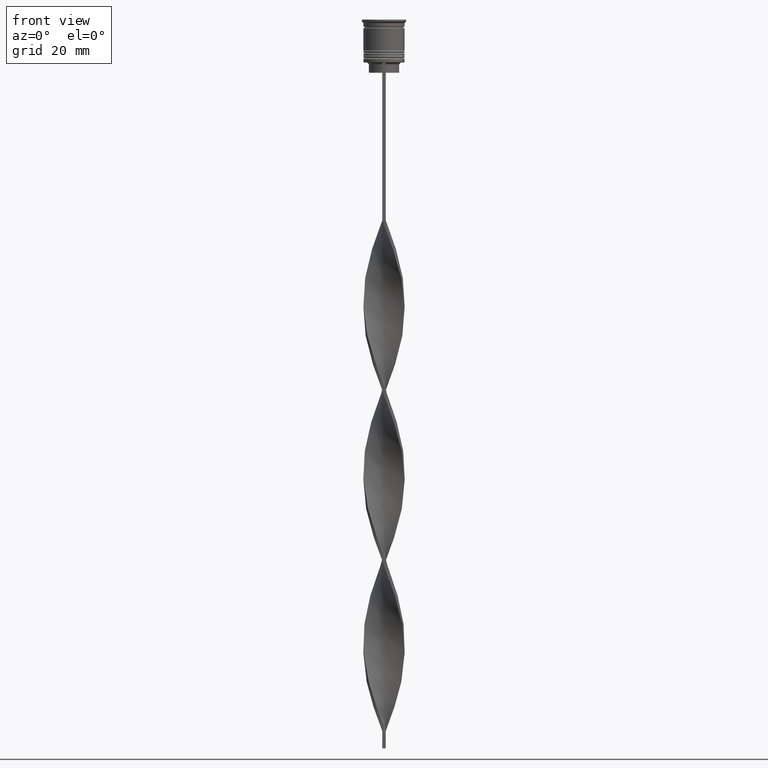
[diagram: clean part render]
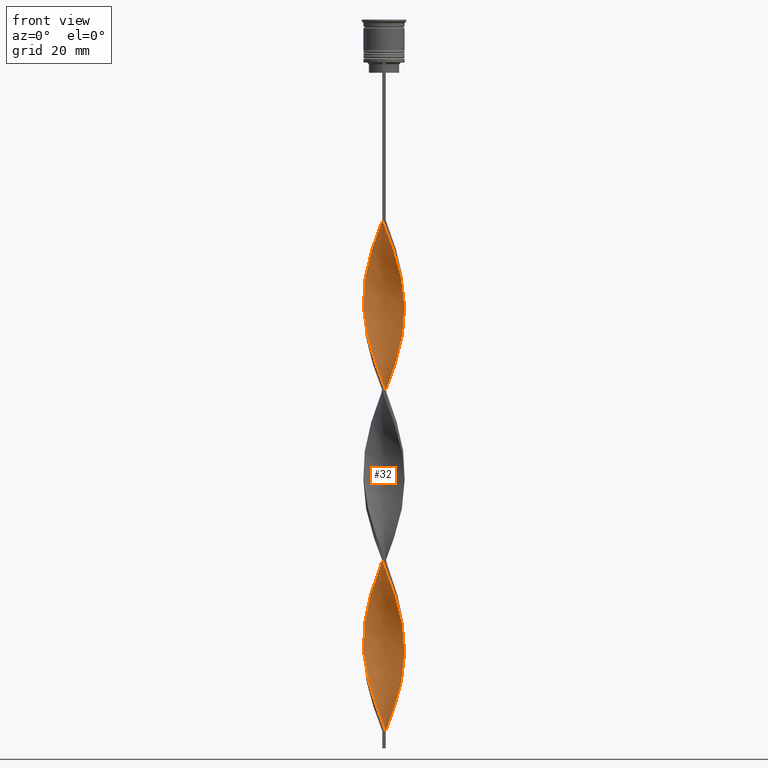
[diagram: same view with one face highlighted and labeled with its STEP entity id]
A machine part, front view. The second image highlights one B-rep face of the part: STEP entity #32.
In plain terms, the highlighted face is a freeform B-spline surface patch.
Its self-contained STEP definition (entity closure, byte-faithful):
#1 = CARTESIAN_POINT ( 'NONE',  ( 4.486786045491810704, 4.014816431915656736, -143.2254901960784537 ) ) ;
#4 = CARTESIAN_POINT ( 'NONE',  ( 5.387501025401044252, -2.745194926993650419, -124.2352941176470580 ) ) ;
#12 = CARTESIAN_POINT ( 'NONE',  ( -0.4999999999999997780, -6.000000000000000000, -58.50000000000000000 ) ) ;
#24 = CARTESIAN_POINT ( 'NONE',  ( -3.135386787619624638, 5.170165585153851495, -165.1372549019608016 ) ) ;
#27 = CARTESIAN_POINT ( 'NONE',  ( -5.634122364000872629, -2.122890762018907029, -187.0490196078431211 ) ) ;
#29 = ORIENTED_EDGE ( 'NONE', *, *, #1276, .T. ) ;
#32 = ADVANCED_FACE ( 'NONE', ( #3638 ), #94, .T. ) ;
#44 = CARTESIAN_POINT ( 'NONE',  ( 1.593983656741371657, -5.805963839195126042, -111.0882352941176379 ) ) ;
#46 = CARTESIAN_POINT ( 'NONE',  ( -4.032016302638261607, 4.506007880724164139, -168.0588235294117680 ) ) ;
#52 = CARTESIAN_POINT ( 'NONE',  ( 4.032016302638260719, 4.506007880724164139, -97.94117647058824616 ) ) ;
#61 = CARTESIAN_POINT ( 'NONE',  ( -5.148110570242105055, -3.122011780336760189, -189.9705882352941160 ) ) ;
#64 = CARTESIAN_POINT ( 'NONE',  ( 5.437407565418680200, 2.644969083640990259, -138.8431372549019045 ) ) ;
#68 = CARTESIAN_POINT ( 'NONE',  ( 5.593848926018643475, 2.226848488981698626, -90.63725490196078738 ) ) ;
#76 = CARTESIAN_POINT ( 'NONE',  ( 0.5000000000000000000, 2.000000000000000000, -207.5000000000000000 ) ) ;
#87 = CARTESIAN_POINT ( 'NONE',  ( -1.593983656741372767, 5.805963839195126042, -160.7549019607842808 ) ) ;
#92 = CARTESIAN_POINT ( 'NONE',  ( 6.025704593494046968, -0.5021420494578373583, -83.33333333333332860 ) ) ;
#94 =( BOUNDED_SURFACE ( )  B_SPLINE_SURFACE ( 1, 2, ( 
 ( #3081, #1225, #415, #1602, #686, #2136, #3339, #3396, #1881, #1843, #3101, #3658, #3046, #2486, #353, #957, #1577, #92, #2160, #670, #1557, #2759, #68, #981, #1265, #3697, #2178, #3380, #705, #1641, #2888, #3503, #2006, #448, #805, #2819, #3200, #1077, #3739, #1685, #471, #2614, #3483, #511, #181, #3814, #2274, #3182, #131, #220, #765, #1325, #1039, #1351, #158, #2842, #2523, #196, #2548, #2294, #2023, #1390, #1704, #785, #1059, #3758, #2238, #2909, #3776, #747, #1965, #2257, #3440, #494, #3795, #1987, #823, #2588, #1414, #1096, #1113, #2313, #1666, #3523, #3218, #1622, #1943, #3139, #3460, #3158, #2868, #2569, #1370, #863, #2098, #2369, #2117, #1151, #532, #2046, #3276, #3580, #3565 ),
 ( #3617, #275, #1203, #879, #3260, #604, #2352, #550, #1781, #2383, #895, #3243, #3595, #1727, #3300, #3872, #2629, #585, #568, #1499, #2078, #1799, #2964, #2700, #1172, #2985, #2934, #3003, #2062, #241, #3832, #256, #2948, #1744, #1430, #296, #1446, #1187, #918, #1484, #311, #2684, #3850, #2644, #1130, #4, #2667, #3545, #1761, #1465, #2331, #3888, #2403, #845, #2501, #64, #1286, #387, #2194, #2757, #3359, #1574, #412, #2778, #3377, #1878, #111, #935, #3714, #368, #87, #3656, #994, #1261, #1013, #46, #3318, #2135, #2175, #2462, #2441, #2483, #3677, #3694, #702, #3337, #3079, #953, #27, #1898, #2157, #3395, #3099, #1599, #2739, #3019, #1305, #667, #2798, #1537, #622, #1815, #2422 ) ),
 .UNSPECIFIED., .F., .F., .F. ) 
 B_SPLINE_SURFACE_WITH_KNOTS ( ( 2, 2 ),
 ( 3, 2, 2, 2, 2, 2, 2, 2, 2, 2, 2, 2, 2, 2, 2, 2, 2, 2, 2, 2, 2, 2, 2, 2, 2, 2, 2, 2, 2, 2, 2, 2, 2, 2, 2, 2, 2, 2, 2, 2, 2, 2, 2, 2, 2, 2, 2, 2, 2, 2, 2, 3 ),
 ( 0.000000000000000000, 1.000000000000000000 ),
 ( 0.000000000000000000, 0.01470588235294117627, 0.02941176470588235253, 0.04411764705882353227, 0.05882352941176470507, 0.07352941176470588480, 0.08823529411764706454, 0.1029411764705882304, 0.1176470588235294101, 0.1323529411764705899, 0.1470588235294117696, 0.1617647058823529493, 0.1764705882352941291, 0.1911764705882352811, 0.2058823529411764608, 0.2205882352941176405, 0.2352941176470588203, 0.2500000000000000000, 0.2647058823529411797, 0.2794117647058823595, 0.2941176470588235392, 0.3088235294117647189, 0.3235294117647058987, 0.3382352941176470784, 0.3529411764705882582, 0.3676470588235294379, 0.3823529411764705621, 0.3970588235294117418, 0.4117647058823529216, 0.4264705882352941013, 0.4411764705882352811, 0.4558823529411764608, 0.4705882352941176405, 0.4852941176470588203, 0.5000000000000000000, 0.5147058823529411242, 0.5294117647058823595, 0.5441176470588234837, 0.5588235294117647189, 0.5735294117647058432, 0.5882352941176470784, 0.6029411764705882026, 0.6176470588235294379, 0.6323529411764705621, 0.6470588235294117974, 0.6617647058823529216, 0.6764705882352941568, 0.6911764705882352811, 0.7058823529411765163, 0.7205882352941176405, 0.7352941176470588758, 0.7500000000000000000 ),
 .UNSPECIFIED. ) 
 GEOMETRIC_REPRESENTATION_ITEM ( )  RATIONAL_B_SPLINE_SURFACE ( (
 ( 1.000000000000000000, 0.9957341762950344677, 1.000000000000000000, 0.9957341762950344677, 1.000000000000000000, 0.9957341762950344677, 1.000000000000000000, 0.9957341762950344677, 1.000000000000000000, 0.9957341762950344677, 1.000000000000000000, 0.9957341762950344677, 1.000000000000000000, 0.9957341762950344677, 1.000000000000000000, 0.9957341762950344677, 1.000000000000000000, 0.9957341762950344677, 1.000000000000000000, 0.9957341762950344677, 1.000000000000000000, 0.9957341762950344677, 1.000000000000000000, 0.9957341762950344677, 1.000000000000000000, 0.9957341762950344677, 1.000000000000000000, 0.9957341762950344677, 1.000000000000000000, 0.9957341762950344677, 1.000000000000000000, 0.9957341762950344677, 1.000000000000000000, 0.9957341762950344677, 1.000000000000000000, 0.9957341762950344677, 1.000000000000000000, 0.9957341762950344677, 1.000000000000000000, 0.9957341762950344677, 1.000000000000000000, 0.9957341762950344677, 1.000000000000000000, 0.9957341762950344677, 1.000000000000000000, 0.9957341762950344677, 1.000000000000000000, 0.9957341762950344677, 1.000000000000000000, 0.9957341762950344677, 1.000000000000000000, 0.9957341762950344677, 1.000000000000000000, 0.9957341762950344677, 1.000000000000000000, 0.9957341762950344677, 1.000000000000000000, 0.9957341762950344677, 1.000000000000000000, 0.9957341762950344677, 1.000000000000000000, 0.9957341762950344677, 1.000000000000000000, 0.9957341762950344677, 1.000000000000000000, 0.9957341762950344677, 1.000000000000000000, 0.9957341762950344677, 1.000000000000000000, 0.9957341762950344677, 1.000000000000000000, 0.9957341762950344677, 1.000000000000000000, 0.9957341762950344677, 1.000000000000000000, 0.9957341762950344677, 1.000000000000000000, 0.9957341762950344677, 1.000000000000000000, 0.9957341762950344677, 1.000000000000000000, 0.9957341762950344677, 1.000000000000000000, 0.9957341762950344677, 1.000000000000000000, 0.9957341762950344677, 1.000000000000000000, 0.9957341762950344677, 1.000000000000000000, 0.9957341762950344677, 1.000000000000000000, 0.9957341762950344677, 1.000000000000000000, 0.9957341762950344677, 1.000000000000000000, 0.9957341762950344677, 1.000000000000000000, 0.9957341762950344677, 1.000000000000000000, 0.9957341762950344677, 1.000000000000000000, 0.9957341762950344677, 1.000000000000000000),
 ( 1.000000000000000000, 0.9957341762950344677, 1.000000000000000000, 0.9957341762950344677, 1.000000000000000000, 0.9957341762950344677, 1.000000000000000000, 0.9957341762950344677, 1.000000000000000000, 0.9957341762950344677, 1.000000000000000000, 0.9957341762950344677, 1.000000000000000000, 0.9957341762950344677, 1.000000000000000000, 0.9957341762950344677, 1.000000000000000000, 0.9957341762950344677, 1.000000000000000000, 0.9957341762950344677, 1.000000000000000000, 0.9957341762950344677, 1.000000000000000000, 0.9957341762950344677, 1.000000000000000000, 0.9957341762950344677, 1.000000000000000000, 0.9957341762950344677, 1.000000000000000000, 0.9957341762950344677, 1.000000000000000000, 0.9957341762950344677, 1.000000000000000000, 0.9957341762950344677, 1.000000000000000000, 0.9957341762950344677, 1.000000000000000000, 0.9957341762950344677, 1.000000000000000000, 0.9957341762950344677, 1.000000000000000000, 0.9957341762950344677, 1.000000000000000000, 0.9957341762950344677, 1.000000000000000000, 0.9957341762950344677, 1.000000000000000000, 0.9957341762950344677, 1.000000000000000000, 0.9957341762950344677, 1.000000000000000000, 0.9957341762950344677, 1.000000000000000000, 0.9957341762950344677, 1.000000000000000000, 0.9957341762950344677, 1.000000000000000000, 0.9957341762950344677, 1.000000000000000000, 0.9957341762950344677, 1.000000000000000000, 0.9957341762950344677, 1.000000000000000000, 0.9957341762950344677, 1.000000000000000000, 0.9957341762950344677, 1.000000000000000000, 0.9957341762950344677, 1.000000000000000000, 0.9957341762950344677, 1.000000000000000000, 0.9957341762950344677, 1.000000000000000000, 0.9957341762950344677, 1.000000000000000000, 0.9957341762950344677, 1.000000000000000000, 0.9957341762950344677, 1.000000000000000000, 0.9957341762950344677, 1.000000000000000000, 0.9957341762950344677, 1.000000000000000000, 0.9957341762950344677, 1.000000000000000000, 0.9957341762950344677, 1.000000000000000000, 0.9957341762950344677, 1.000000000000000000, 0.9957341762950344677, 1.000000000000000000, 0.9957341762950344677, 1.000000000000000000, 0.9957341762950344677, 1.000000000000000000, 0.9957341762950344677, 1.000000000000000000, 0.9957341762950344677, 1.000000000000000000, 0.9957341762950344677, 1.000000000000000000, 0.9957341762950344677, 1.000000000000000000) ) ) 
 REPRESENTATION_ITEM ( '' )  SURFACE ( )  );
#111 = CARTESIAN_POINT ( 'NONE',  ( 0.6110105570574696499, 5.989713357011694939, -154.9117647058823479 ) ) ;
#117 = CARTESIAN_POINT ( 'NONE',  ( 0.5000000000000005551, 6.000000000000000000, -108.1666666666666572 ) ) ;
#131 = CARTESIAN_POINT ( 'NONE',  ( -5.634122364000872629, 2.122890762018908362, -128.6176470588235361 ) ) ;
#135 = CARTESIAN_POINT ( 'NONE',  ( -4.114758515918088833, 4.430578386798786461, -121.3137254901960773 ) ) ;
#158 = CARTESIAN_POINT ( 'NONE',  ( -5.907785354072955464, -1.161065118846087207, -137.3823529411764639 ) ) ;
#163 = CARTESIAN_POINT ( 'NONE',  ( -6.020539237501857599, -0.05574306863229214898, -134.4607843137254974 ) ) ;
#181 = CARTESIAN_POINT ( 'NONE',  ( -4.486786045491808927, 4.014816431915658512, -122.7745098039215605 ) ) ;
#182 = CARTESIAN_POINT ( 'NONE',  ( 1.055981877452177864, 5.953668176878987417, -206.0392156862745026 ) ) ;
#195 = CARTESIAN_POINT ( 'NONE',  ( -5.907785354072955464, 1.161065118846087207, -78.95098039215686470 ) ) ;
#196 = CARTESIAN_POINT ( 'NONE',  ( -5.387501025401044252, -2.745194926993649087, -141.7647058823529562 ) ) ;
#198 = CARTESIAN_POINT ( 'NONE',  ( -5.387501025401044252, -2.745194926993649087, -141.7647058823529562 ) ) ;
#216 = VECTOR ( 'NONE', #1211, 1000.000000000000000 ) ;
#220 = CARTESIAN_POINT ( 'NONE',  ( -5.830837162583068611, 1.600812440396819580, -130.0784313725490335 ) ) ;
#224 = CARTESIAN_POINT ( 'NONE',  ( -2.733484409399328463, 5.364518895816362765, -116.9313725490195992 ) ) ;
#241 = CARTESIAN_POINT ( 'NONE',  ( -2.236388528178717472, -5.617813528137046930, -100.8627450980392126 ) ) ;
#256 = CARTESIAN_POINT ( 'NONE',  ( -1.166039236662764988, -5.933094890902376406, -103.7843137254901933 ) ) ;
#275 = CARTESIAN_POINT ( 'NONE',  ( -1.055981877452178086, 5.953668176878986529, -59.96078431372549744 ) ) ;
#294 = CARTESIAN_POINT ( 'NONE',  ( -3.230580290619939898, -5.111224263495680376, -97.94117647058824616 ) ) ;
#296 = CARTESIAN_POINT ( 'NONE',  ( 1.055981877452178530, -5.953668176878986529, -109.6274509803921546 ) ) ;
#309 = CARTESIAN_POINT ( 'NONE',  ( 2.131985436030567005, -5.658259501511266443, -112.5490196078431495 ) ) ;
#311 = CARTESIAN_POINT ( 'NONE',  ( 3.583701545128942012, -4.838086732939006041, -116.9313725490195992 ) ) ;
#315 = LINE ( 'NONE', #12, #216 ) ;
#323 = CARTESIAN_POINT ( 'NONE',  ( 5.830837162583066835, 1.600812440396822467, -135.9215686274509665 ) ) ;
#336 = CARTESIAN_POINT ( 'NONE',  ( 3.583701545128941568, 4.838086732939006929, -99.40196078431372939 ) ) ;
#346 = CARTESIAN_POINT ( 'NONE',  ( -1.701213882420740120, -5.775454209519710780, -102.3235294117646959 ) ) ;
#353 = CARTESIAN_POINT ( 'NONE',  ( 5.634122364000872629, -2.122890762018906141, -78.95098039215686470 ) ) ;
#357 = CARTESIAN_POINT ( 'NONE',  ( 5.830837162583067723, -1.600812440396821357, -80.41176470588234793 ) ) ;
#366 = CARTESIAN_POINT ( 'NONE',  ( -4.486786045491809816, -4.014816431915657624, -192.8921568627450824 ) ) ;
#368 = CARTESIAN_POINT ( 'NONE',  ( -1.055981877452178086, 5.953668176878986529, -159.2941176470588118 ) ) ;
#376 = CARTESIAN_POINT ( 'NONE',  ( 6.020539237501858487, 0.05574306863229420983, -84.79411764705882604 ) ) ;
#387 = CARTESIAN_POINT ( 'NONE',  ( 4.858813575065529911, 3.599054477032529675, -141.7647058823529562 ) ) ;
#412 = CARTESIAN_POINT ( 'NONE',  ( 2.733484409399330239, 5.364518895816361876, -149.0686274509803866 ) ) ;
#415 = CARTESIAN_POINT ( 'NONE',  ( 0.6110105570574714262, -5.989713357011694939, -61.42156862745097357 ) ) ;
#418 = CARTESIAN_POINT ( 'NONE',  ( 3.672669403269014143, -4.770901325147232974, -70.18627450980390847 ) ) ;
#424 = ORIENTED_EDGE ( 'NONE', *, *, #3881, .T. ) ;
#435 = CARTESIAN_POINT ( 'NONE',  ( 0.05598187745217882844, -6.046331823121015248, -159.2941176470588118 ) ) ;
#448 = CARTESIAN_POINT ( 'NONE',  ( 1.055981877452177642, 5.953668176878988305, -106.7058823529412024 ) ) ;
#452 = CARTESIAN_POINT ( 'NONE',  ( -4.791340338341085747, -3.688403482277191170, -144.6862745098039227 ) ) ;
#471 = CARTESIAN_POINT ( 'NONE',  ( -2.733484409399328463, 5.364518895816362765, -116.9313725490195992 ) ) ;
#476 = CARTESIAN_POINT ( 'NONE',  ( 5.593848926018643475, 2.226848488981698626, -189.9705882352941160 ) ) ;
#492 = CARTESIAN_POINT ( 'NONE',  ( -4.791340338341087524, 3.688403482277190282, -71.64705882352942012 ) ) ;
#494 = CARTESIAN_POINT ( 'NONE',  ( 2.236388528178716584, -5.617813528137047818, -165.1372549019608016 ) ) ;
#496 = CARTESIAN_POINT ( 'NONE',  ( 4.486786045491808927, -4.014816431915657624, -172.4411764705882035 ) ) ;
#511 = CARTESIAN_POINT ( 'NONE',  ( -4.114758515918088833, 4.430578386798786461, -121.3137254901960631 ) ) ;
#513 = CARTESIAN_POINT ( 'NONE',  ( 2.131985436030567893, 5.658259501511266443, -203.1176470588235361 ) ) ;
#532 = CARTESIAN_POINT ( 'NONE',  ( 2.633686111825095377, 5.414212543332558525, -201.6568627450980387 ) ) ;
#550 = CARTESIAN_POINT ( 'NONE',  ( -4.032016302638261607, 4.506007880724164139, -68.72549019607842524 ) ) ;
#567 = CARTESIAN_POINT ( 'NONE',  ( -4.032016302638260719, 4.506007880724164139, -68.72549019607842524 ) ) ;
#568 = CARTESIAN_POINT ( 'NONE',  ( -5.928270878038556013, -1.051477244927328192, -84.79411764705882604 ) ) ;
#582 = CARTESIAN_POINT ( 'NONE',  ( 0.05598187745217871047, 6.046331823121017024, -156.3725490196078454 ) ) ;
#585 = CARTESIAN_POINT ( 'NONE',  ( -6.025704593494046968, -0.5021420494578366922, -83.33333333333332860 ) ) ;
#602 = CARTESIAN_POINT ( 'NONE',  ( -3.583701545128941568, 4.838086732939006929, -166.5980392156862706 ) ) ;
#604 = CARTESIAN_POINT ( 'NONE',  ( -3.135386787619624638, 5.170165585153851495, -65.80392156862747299 ) ) ;
#620 = CARTESIAN_POINT ( 'NONE',  ( 6.025704593494046968, 0.5021420494578359150, -133.0000000000000000 ) ) ;
#622 = CARTESIAN_POINT ( 'NONE',  ( -0.6110105570574716483, -5.989713357011694939, -204.5784313725490335 ) ) ;
#638 = CARTESIAN_POINT ( 'NONE',  ( 3.230580290619941231, 5.111224263495680376, -147.6078431372548891 ) ) ;
#652 = CARTESIAN_POINT ( 'NONE',  ( 2.733484409399328019, -5.364518895816363653, -67.26470588235292780 ) ) ;
#663 = CARTESIAN_POINT ( 'NONE',  ( 5.928270878038556901, 1.051477244927326415, -134.4607843137254974 ) ) ;
#667 = CARTESIAN_POINT ( 'NONE',  ( -2.236388528178717472, -5.617813528137046930, -200.1960784313725981 ) ) ;
#670 = CARTESIAN_POINT ( 'NONE',  ( 6.015373881509670007, 0.6136281867224272490, -86.25490196078432348 ) ) ;
#674 = CARTESIAN_POINT ( 'NONE',  ( 5.634122364000872629, -2.122890762018906141, -78.95098039215686470 ) ) ;
#686 = CARTESIAN_POINT ( 'NONE',  ( 1.701213882420740120, -5.775454209519710780, -64.34313725490196134 ) ) ;
#689 = CARTESIAN_POINT ( 'NONE',  ( 5.593848926018643475, 2.226848488981698626, -90.63725490196078738 ) ) ;
#702 = CARTESIAN_POINT ( 'NONE',  ( -6.020539237501858487, 0.05574306863229507719, -181.2058823529411598 ) ) ;
#705 = CARTESIAN_POINT ( 'NONE',  ( 3.583701545128941568, 4.838086732939006929, -99.40196078431372939 ) ) ;
#709 = CARTESIAN_POINT ( 'NONE',  ( 1.593983656741372767, 5.805963839195126042, -105.2450980392156765 ) ) ;
#733 = CARTESIAN_POINT ( 'NONE',  ( -2.236388528178715696, 5.617813528137046042, -115.4705882352941018 ) ) ;
#743 = CARTESIAN_POINT ( 'NONE',  ( -1.166039236662764988, -5.933094890902377294, -203.1176470588235361 ) ) ;
#747 = CARTESIAN_POINT ( 'NONE',  ( 0.05598187745217882844, -6.046331823121014359, -159.2941176470588118 ) ) ;
#750 = CARTESIAN_POINT ( 'NONE',  ( 5.800196826636242697, 1.708502050969748609, -188.5098039215686185 ) ) ;
#765 = CARTESIAN_POINT ( 'NONE',  ( -5.928270878038556013, 1.051477244927328636, -131.5392156862745310 ) ) ;
#767 = CARTESIAN_POINT ( 'NONE',  ( -4.411678320489671457, -4.097205681500676988, -146.1470588235294201 ) ) ;
#785 = CARTESIAN_POINT ( 'NONE',  ( -3.135386787619623750, -5.170165585153852383, -150.5294117647058840 ) ) ;
#790 = CARTESIAN_POINT ( 'NONE',  ( -0.4999999999999997780, -6.000000000000000000, -157.8333333333333144 ) ) ;
#804 = CARTESIAN_POINT ( 'NONE',  ( -5.593848926018643475, 2.226848488981699070, -76.02941176470586981 ) ) ;
#805 = CARTESIAN_POINT ( 'NONE',  ( 0.5000000000000005551, 6.000000000000000000, -108.1666666666666572 ) ) ;
#808 = CARTESIAN_POINT ( 'NONE',  ( 2.633686111825095377, 5.414212543332558525, -201.6568627450980387 ) ) ;
#822 = CARTESIAN_POINT ( 'NONE',  ( -4.486786045491809816, -4.014816431915657624, -93.55882352941176805 ) ) ;
#823 = CARTESIAN_POINT ( 'NONE',  ( 3.672669403269014143, -4.770901325147232974, -169.5196078431372371 ) ) ;
#826 = CARTESIAN_POINT ( 'NONE',  ( -5.907785354072955464, -1.161065118846087207, -137.3823529411764639 ) ) ;
#830 = EDGE_LOOP ( 'NONE', ( #29, #424, #2302, #3097 ) ) ;
#845 = CARTESIAN_POINT ( 'NONE',  ( 5.830837162583067723, 1.600812440396822467, -135.9215686274509665 ) ) ;
#861 = CARTESIAN_POINT ( 'NONE',  ( -3.135386787619624638, 5.170165585153851495, -65.80392156862745878 ) ) ;
#863 = CARTESIAN_POINT ( 'NONE',  ( 4.791340338341087524, 3.688403482277190282, -194.3529411764705799 ) ) ;
#876 = CARTESIAN_POINT ( 'NONE',  ( 4.411678320489672345, -4.097205681500676988, -119.8529411764705799 ) ) ;
#879 = CARTESIAN_POINT ( 'NONE',  ( -2.131985436030567005, 5.658259501511265555, -62.88235294117647811 ) ) ;
#892 = CARTESIAN_POINT ( 'NONE',  ( -2.633686111825095377, 5.414212543332558525, -163.6764705882352757 ) ) ;
#895 = CARTESIAN_POINT ( 'NONE',  ( -5.089420681871065000, 3.216799204635419240, -73.10784313725488914 ) ) ;
#916 = CARTESIAN_POINT ( 'NONE',  ( 4.858813575065529911, 3.599054477032529675, -141.7647058823529562 ) ) ;
#918 = CARTESIAN_POINT ( 'NONE',  ( 2.633686111825096265, -5.414212543332558525, -114.0098039215686185 ) ) ;
#933 = CARTESIAN_POINT ( 'NONE',  ( 0.4999999999999990563, -6.000000000000000000, -108.1666666666666572 ) ) ;
#935 = CARTESIAN_POINT ( 'NONE',  ( 0.05598187745217871047, 6.046331823121016136, -156.3725490196078454 ) ) ;
#940 = CARTESIAN_POINT ( 'NONE',  ( -0.4999999999999997780, -6.000000000000000000, -58.50000000000000000 ) ) ;
#950 = CARTESIAN_POINT ( 'NONE',  ( -5.800196826636242697, 1.708502050969749497, -176.8235294117647243 ) ) ;
#951 = CARTESIAN_POINT ( 'NONE',  ( -0.4999999999999997780, 6.000000000000000888, -58.50000000000000000 ) ) ;
#953 = CARTESIAN_POINT ( 'NONE',  ( -5.830837162583067723, -1.600812440396821801, -185.5882352941176237 ) ) ;
#957 = CARTESIAN_POINT ( 'NONE',  ( 5.830837162583068611, -1.600812440396821357, -80.41176470588234793 ) ) ;
#973 = CARTESIAN_POINT ( 'NONE',  ( -4.858813575065529911, -3.599054477032530563, -191.4313725490196134 ) ) ;
#981 = CARTESIAN_POINT ( 'NONE',  ( 5.387501025401044252, 2.745194926993649975, -92.09803921568628482 ) ) ;
#984 = CARTESIAN_POINT ( 'NONE',  ( 5.907785354072955464, 1.161065118846088096, -87.71568627450979250 ) ) ;
#994 = CARTESIAN_POINT ( 'NONE',  ( -2.633686111825095377, 5.414212543332558525, -163.6764705882352757 ) ) ;
#1001 = CARTESIAN_POINT ( 'NONE',  ( 0.05598187745217882844, -6.046331823121015248, -59.96078431372549034 ) ) ;
#1013 = CARTESIAN_POINT ( 'NONE',  ( -3.583701545128941568, 4.838086732939006929, -166.5980392156862706 ) ) ;
#1021 = CARTESIAN_POINT ( 'NONE',  ( -1.166039236662763656, 5.933094890902377294, -112.5490196078431495 ) ) ;
#1039 = CARTESIAN_POINT ( 'NONE',  ( -6.020539237501857599, -0.05574306863229214898, -134.4607843137254974 ) ) ;
#1042 = CARTESIAN_POINT ( 'NONE',  ( 2.236388528178716140, -5.617813528137046930, -165.1372549019608016 ) ) ;
#1059 = CARTESIAN_POINT ( 'NONE',  ( -2.633686111825095821, -5.414212543332558525, -151.9901960784313530 ) ) ;
#1061 = CARTESIAN_POINT ( 'NONE',  ( 5.928270878038556013, -1.051477244927329080, -181.2058823529411598 ) ) ;
#1075 = CARTESIAN_POINT ( 'NONE',  ( -5.387501025401044252, 2.745194926993649087, -74.56862745098038658 ) ) ;
#1077 = CARTESIAN_POINT ( 'NONE',  ( -1.166039236662763656, 5.933094890902376406, -112.5490196078431495 ) ) ;
#1079 = CARTESIAN_POINT ( 'NONE',  ( -5.928270878038556013, 1.051477244927328636, -131.5392156862745310 ) ) ;
#1096 = CARTESIAN_POINT ( 'NONE',  ( 4.858813575065529911, -3.599054477032529675, -173.9019607843137294 ) ) ;
#1100 = CARTESIAN_POINT ( 'NONE',  ( 5.634122364000872629, -2.122890762018906141, -178.2843137254901933 ) ) ;
#1112 = CARTESIAN_POINT ( 'NONE',  ( -5.148110570242105055, -3.122011780336760189, -90.63725490196078738 ) ) ;
#1113 = CARTESIAN_POINT ( 'NONE',  ( 5.148110570242105055, -3.122011780336760634, -175.3627450980391984 ) ) ;
#1115 = CARTESIAN_POINT ( 'NONE',  ( 1.593983656741372767, 5.805963839195126042, -204.5784313725490335 ) ) ;
#1130 = CARTESIAN_POINT ( 'NONE',  ( 5.089420681871065000, -3.216799204635420129, -122.7745098039215605 ) ) ;
#1151 = CARTESIAN_POINT ( 'NONE',  ( 3.135386787619625526, 5.170165585153850607, -200.1960784313725981 ) ) ;
#1169 = CARTESIAN_POINT ( 'NONE',  ( -4.114758515918087944, -4.430578386798787349, -95.01960784313726549 ) ) ;
#1172 = CARTESIAN_POINT ( 'NONE',  ( -4.486786045491809816, -4.014816431915657624, -93.55882352941176805 ) ) ;
#1184 = CARTESIAN_POINT ( 'NONE',  ( 2.633686111825096265, -5.414212543332558525, -114.0098039215686185 ) ) ;
#1187 = CARTESIAN_POINT ( 'NONE',  ( 2.131985436030567005, -5.658259501511265555, -112.5490196078431495 ) ) ;
#1201 = CARTESIAN_POINT ( 'NONE',  ( 2.733484409399330239, 5.364518895816361876, -149.0686274509803866 ) ) ;
#1203 = CARTESIAN_POINT ( 'NONE',  ( -1.593983656741372767, 5.805963839195126042, -61.42156862745097357 ) ) ;
#1211 = DIRECTION ( 'NONE',  ( 0.000000000000000000, 1.000000000000000000, 0.000000000000000000 ) ) ;
#1221 = CARTESIAN_POINT ( 'NONE',  ( -5.387501025401044252, 2.745194926993649087, -173.9019607843137294 ) ) ;
#1225 = CARTESIAN_POINT ( 'NONE',  ( 0.05598187745217882844, -6.046331823121014359, -59.96078431372549744 ) ) ;
#1240 = CARTESIAN_POINT ( 'NONE',  ( -5.593848926018643475, 2.226848488981699070, -175.3627450980391984 ) ) ;
#1247 = CARTESIAN_POINT ( 'NONE',  ( 2.131985436030567893, 5.658259501511266443, -103.7843137254901791 ) ) ;
#1261 = CARTESIAN_POINT ( 'NONE',  ( -3.135386787619624638, 5.170165585153851495, -165.1372549019608016 ) ) ;
#1265 = CARTESIAN_POINT ( 'NONE',  ( 5.089420681871065888, 3.216799204635418352, -93.55882352941176805 ) ) ;
#1270 = CARTESIAN_POINT ( 'NONE',  ( 6.015373881509670895, 0.6136281867224271380, -86.25490196078432348 ) ) ;
#1276 = EDGE_CURVE ( 'NONE', #2633, #2322, #315, .T. ) ;
#1282 = CARTESIAN_POINT ( 'NONE',  ( -0.6110105570574716483, -5.989713357011694939, -204.5784313725490335 ) ) ;
#1286 = CARTESIAN_POINT ( 'NONE',  ( 5.148110570242104167, 3.122011780336761966, -140.3039215686274588 ) ) ;
#1291 = CARTESIAN_POINT ( 'NONE',  ( 6.025704593494046968, -0.5021420494578373583, -83.33333333333332860 ) ) ;
#1305 = CARTESIAN_POINT ( 'NONE',  ( -2.733484409399328019, -5.364518895816363653, -198.7352941176470722 ) ) ;
#1311 = CARTESIAN_POINT ( 'NONE',  ( -0.6110105570574700939, 5.989713357011694939, -111.0882352941176379 ) ) ;
#1325 = CARTESIAN_POINT ( 'NONE',  ( -6.025704593494046968, 0.5021420494578381355, -133.0000000000000000 ) ) ;
#1330 = CARTESIAN_POINT ( 'NONE',  ( -6.015373881509670895, -0.6136281867224278042, -135.9215686274509665 ) ) ;
#1351 = CARTESIAN_POINT ( 'NONE',  ( -6.015373881509670007, -0.6136281867224278042, -135.9215686274509665 ) ) ;
#1353 = CARTESIAN_POINT ( 'NONE',  ( 2.733484409399328019, -5.364518895816363653, -166.5980392156862706 ) ) ;
#1370 = CARTESIAN_POINT ( 'NONE',  ( 5.089420681871065888, 3.216799204635418352, -192.8921568627450824 ) ) ;
#1372 = CARTESIAN_POINT ( 'NONE',  ( -5.800196826636242697, -1.708502050969747277, -138.8431372549019329 ) ) ;
#1388 = CARTESIAN_POINT ( 'NONE',  ( -5.830837162583066835, -1.600812440396821801, -86.25490196078432348 ) ) ;
#1390 = CARTESIAN_POINT ( 'NONE',  ( -4.032016302638262495, -4.506007880724164139, -147.6078431372548891 ) ) ;
#1393 = CARTESIAN_POINT ( 'NONE',  ( 5.437407565418680200, -2.644969083640992480, -176.8235294117647243 ) ) ;
#1410 = CARTESIAN_POINT ( 'NONE',  ( -6.020539237501858487, 0.05574306863229507719, -81.87254901960783116 ) ) ;
#1414 = CARTESIAN_POINT ( 'NONE',  ( 4.486786045491808927, -4.014816431915657624, -172.4411764705882035 ) ) ;
#1418 = CARTESIAN_POINT ( 'NONE',  ( -3.583701545128944232, -4.838086732939006041, -149.0686274509803866 ) ) ;
#1430 = CARTESIAN_POINT ( 'NONE',  ( 0.4999999999999990563, -6.000000000000000000, -108.1666666666666572 ) ) ;
#1446 = CARTESIAN_POINT ( 'NONE',  ( 1.593983656741371657, -5.805963839195126042, -111.0882352941176379 ) ) ;
#1462 = CARTESIAN_POINT ( 'NONE',  ( -5.830837162583066835, -1.600812440396821801, -185.5882352941176237 ) ) ;
#1465 = CARTESIAN_POINT ( 'NONE',  ( 6.015373881509670007, -0.6136281867224248066, -130.0784313725490335 ) ) ;
#1482 = CARTESIAN_POINT ( 'NONE',  ( 5.800196826636242697, -1.708502050969749053, -127.1568627450980244 ) ) ;
#1484 = CARTESIAN_POINT ( 'NONE',  ( 3.135386787619624194, -5.170165585153852383, -115.4705882352940876 ) ) ;
#1496 = CARTESIAN_POINT ( 'NONE',  ( 3.135386787619624194, -5.170165585153852383, -115.4705882352941018 ) ) ;
#1499 = CARTESIAN_POINT ( 'NONE',  ( -5.830837162583067723, -1.600812440396821801, -86.25490196078432348 ) ) ;
#1513 = CARTESIAN_POINT ( 'NONE',  ( -3.672669403269015032, -4.770901325147232086, -96.48039215686274872 ) ) ;
#1526 = CARTESIAN_POINT ( 'NONE',  ( 5.437407565418680200, -2.644969083640992480, -77.49019607843136725 ) ) ;
#1535 = CARTESIAN_POINT ( 'NONE',  ( 5.148110570242104167, 3.122011780336761966, -140.3039215686274588 ) ) ;
#1537 = CARTESIAN_POINT ( 'NONE',  ( -1.166039236662764988, -5.933094890902376406, -203.1176470588235361 ) ) ;
#1557 = CARTESIAN_POINT ( 'NONE',  ( 5.907785354072955464, 1.161065118846088096, -87.71568627450979250 ) ) ;
#1571 = CARTESIAN_POINT ( 'NONE',  ( -3.672669403269015032, -4.770901325147232086, -195.8137254901960773 ) ) ;
#1574 = CARTESIAN_POINT ( 'NONE',  ( 3.230580290619941231, 5.111224263495680376, -147.6078431372548891 ) ) ;
#1577 = CARTESIAN_POINT ( 'NONE',  ( 5.928270878038556013, -1.051477244927329080, -81.87254901960783116 ) ) ;
#1582 = CARTESIAN_POINT ( 'NONE',  ( 3.230580290619939898, -5.111224263495680376, -68.72549019607842524 ) ) ;
#1595 = CARTESIAN_POINT ( 'NONE',  ( -2.733484409399328019, -5.364518895816363653, -198.7352941176470722 ) ) ;
#1599 = CARTESIAN_POINT ( 'NONE',  ( -4.114758515918087944, -4.430578386798787349, -194.3529411764705799 ) ) ;
#1602 = CARTESIAN_POINT ( 'NONE',  ( 1.166039236662763656, -5.933094890902376406, -62.88235294117647811 ) ) ;
#1605 = CARTESIAN_POINT ( 'NONE',  ( 1.055981877452177864, 5.953668176878987417, -106.7058823529411882 ) ) ;
#1622 = CARTESIAN_POINT ( 'NONE',  ( 6.025704593494046968, -0.5021420494578373583, -182.6666666666666572 ) ) ;
#1625 = CARTESIAN_POINT ( 'NONE',  ( 5.089420681871065888, 3.216799204635418352, -192.8921568627450824 ) ) ;
#1641 = CARTESIAN_POINT ( 'NONE',  ( 3.135386787619625526, 5.170165585153850607, -100.8627450980392126 ) ) ;
#1646 = CARTESIAN_POINT ( 'NONE',  ( 3.230580290619939898, -5.111224263495680376, -168.0588235294117680 ) ) ;
#1666 = CARTESIAN_POINT ( 'NONE',  ( 5.634122364000872629, -2.122890762018906141, -178.2843137254901933 ) ) ;
#1669 = CARTESIAN_POINT ( 'NONE',  ( -2.131985436030568781, -5.658259501511265555, -153.4509803921568789 ) ) ;
#1684 = CARTESIAN_POINT ( 'NONE',  ( -5.089420681871065000, 3.216799204635419240, -73.10784313725488914 ) ) ;
#1685 = CARTESIAN_POINT ( 'NONE',  ( -2.236388528178716140, 5.617813528137046930, -115.4705882352940876 ) ) ;
#1688 = CARTESIAN_POINT ( 'NONE',  ( 4.032016302638260719, 4.506007880724164139, -197.2745098039215463 ) ) ;
#1701 = CARTESIAN_POINT ( 'NONE',  ( -3.583701545128941568, 4.838086732939006929, -67.26470588235292780 ) ) ;
#1704 = CARTESIAN_POINT ( 'NONE',  ( -3.583701545128944232, -4.838086732939006041, -149.0686274509803866 ) ) ;
#1707 = CARTESIAN_POINT ( 'NONE',  ( -3.230580290619938122, 5.111224263495681264, -118.3921568627451109 ) ) ;
#1727 = CARTESIAN_POINT ( 'NONE',  ( -5.800196826636242697, 1.708502050969749497, -77.49019607843138147 ) ) ;
#1744 = CARTESIAN_POINT ( 'NONE',  ( -0.05598187745217796107, -6.046331823121016136, -106.7058823529412024 ) ) ;
#1761 = CARTESIAN_POINT ( 'NONE',  ( 5.907785354072955464, -1.161065118846089428, -128.6176470588235361 ) ) ;
#1778 = CARTESIAN_POINT ( 'NONE',  ( -6.020539237501858487, 0.05574306863229507719, -181.2058823529411598 ) ) ;
#1781 = CARTESIAN_POINT ( 'NONE',  ( -4.411678320489672345, 4.097205681500676988, -70.18627450980390847 ) ) ;
#1797 = CARTESIAN_POINT ( 'NONE',  ( -2.131985436030567005, 5.658259501511266443, -162.2156862745098351 ) ) ;
#1799 = CARTESIAN_POINT ( 'NONE',  ( -5.437407565418680200, -2.644969083640991592, -89.17647058823527573 ) ) ;
#1811 = EDGE_CURVE ( 'NONE', #2577, #3703, #2912, .T. ) ;
#1813 = CARTESIAN_POINT ( 'NONE',  ( 1.055981877452178752, -5.953668176878985641, -109.6274509803921404 ) ) ;
#1815 = CARTESIAN_POINT ( 'NONE',  ( -0.05598187745217796107, -6.046331823121016136, -206.0392156862745026 ) ) ;
#1833 = CARTESIAN_POINT ( 'NONE',  ( -5.907785354072955464, 1.161065118846087207, -178.2843137254901933 ) ) ;
#1843 = CARTESIAN_POINT ( 'NONE',  ( 4.114758515918087944, -4.430578386798787349, -71.64705882352943433 ) ) ;
#1859 = CARTESIAN_POINT ( 'NONE',  ( -0.4999999999999997780, 6.000000000000000000, -157.8333333333333144 ) ) ;
#1869 = CARTESIAN_POINT ( 'NONE',  ( 5.928270878038556013, -1.051477244927329080, -81.87254901960783116 ) ) ;
#1872 = CARTESIAN_POINT ( 'NONE',  ( 0.4999999999999990563, -6.000000000000000000, -207.5000000000000000 ) ) ;
#1878 = CARTESIAN_POINT ( 'NONE',  ( 1.166039236662765655, 5.933094890902375518, -153.4509803921568789 ) ) ;
#1881 = CARTESIAN_POINT ( 'NONE',  ( 3.672669403269014143, -4.770901325147232974, -70.18627450980390847 ) ) ;
#1888 = CARTESIAN_POINT ( 'NONE',  ( 0.4999999999999995559, -2.000000000000000000, -207.5000000000000000 ) ) ;
#1898 = CARTESIAN_POINT ( 'NONE',  ( -5.437407565418680200, -2.644969083640991592, -188.5098039215686185 ) ) ;
#1905 = CARTESIAN_POINT ( 'NONE',  ( 5.089420681871065888, 3.216799204635418352, -93.55882352941176805 ) ) ;
#1928 = CARTESIAN_POINT ( 'NONE',  ( 4.114758515918087944, -4.430578386798787349, -71.64705882352942012 ) ) ;
#1943 = CARTESIAN_POINT ( 'NONE',  ( 6.020539237501858487, 0.05574306863229420983, -184.1274509803921546 ) ) ;
#1946 = CARTESIAN_POINT ( 'NONE',  ( -4.486786045491808927, 4.014816431915658512, -122.7745098039215605 ) ) ;
#1957 = CARTESIAN_POINT ( 'NONE',  ( -2.236388528178717028, -5.617813528137046042, -200.1960784313725696 ) ) ;
#1965 = CARTESIAN_POINT ( 'NONE',  ( 0.6110105570574714262, -5.989713357011694939, -160.7549019607842808 ) ) ;
#1969 = CARTESIAN_POINT ( 'NONE',  ( -4.032016302638261607, -4.506007880724164139, -147.6078431372548891 ) ) ;
#1985 = CARTESIAN_POINT ( 'NONE',  ( -2.131985436030567005, 5.658259501511266443, -62.88235294117647101 ) ) ;
#1987 = CARTESIAN_POINT ( 'NONE',  ( 3.230580290619939898, -5.111224263495680376, -168.0588235294117680 ) ) ;
#1990 = CARTESIAN_POINT ( 'NONE',  ( 5.907785354072955464, 1.161065118846088096, -187.0490196078431211 ) ) ;
#2006 = CARTESIAN_POINT ( 'NONE',  ( 1.593983656741372767, 5.805963839195126042, -105.2450980392156765 ) ) ;
#2008 = CARTESIAN_POINT ( 'NONE',  ( -5.634122364000872629, 2.122890762018908362, -128.6176470588235361 ) ) ;
#2023 = CARTESIAN_POINT ( 'NONE',  ( -4.411678320489671457, -4.097205681500676988, -146.1470588235294201 ) ) ;
#2046 = CARTESIAN_POINT ( 'NONE',  ( 2.131985436030567893, 5.658259501511265555, -203.1176470588235361 ) ) ;
#2062 = CARTESIAN_POINT ( 'NONE',  ( -2.733484409399328019, -5.364518895816363653, -99.40196078431372939 ) ) ;
#2076 = CARTESIAN_POINT ( 'NONE',  ( 5.387501025401044252, -2.745194926993650419, -124.2352941176470580 ) ) ;
#2078 = CARTESIAN_POINT ( 'NONE',  ( -5.634122364000872629, -2.122890762018907029, -87.71568627450979250 ) ) ;
#2095 = CARTESIAN_POINT ( 'NONE',  ( -4.411678320489672345, 4.097205681500676988, -169.5196078431372371 ) ) ;
#2098 = CARTESIAN_POINT ( 'NONE',  ( 4.411678320489673233, 4.097205681500676100, -195.8137254901960773 ) ) ;
#2115 = CARTESIAN_POINT ( 'NONE',  ( -0.05598187745217796107, -6.046331823121017024, -106.7058823529411882 ) ) ;
#2117 = CARTESIAN_POINT ( 'NONE',  ( 3.583701545128941568, 4.838086732939006929, -198.7352941176470722 ) ) ;
#2127 = CARTESIAN_POINT ( 'NONE',  ( -0.4999999999999997780, -6.000000000000000000, -58.50000000000000000 ) ) ;
#2133 = CARTESIAN_POINT ( 'NONE',  ( 4.114758515918086168, 4.430578386798788237, -144.6862745098039227 ) ) ;
#2135 = CARTESIAN_POINT ( 'NONE',  ( -4.791340338341087524, 3.688403482277190282, -170.9803921568627629 ) ) ;
#2136 = CARTESIAN_POINT ( 'NONE',  ( 2.236388528178716584, -5.617813528137047818, -65.80392156862747299 ) ) ;
#2139 = CARTESIAN_POINT ( 'NONE',  ( 4.486786045491808927, -4.014816431915657624, -73.10784313725488914 ) ) ;
#2151 = CARTESIAN_POINT ( 'NONE',  ( -5.928270878038556013, -1.051477244927328192, -184.1274509803921546 ) ) ;
#2157 = CARTESIAN_POINT ( 'NONE',  ( -5.148110570242105055, -3.122011780336760189, -189.9705882352941160 ) ) ;
#2160 = CARTESIAN_POINT ( 'NONE',  ( 6.020539237501858487, 0.05574306863229420983, -84.79411764705882604 ) ) ;
#2165 = CARTESIAN_POINT ( 'NONE',  ( 0.6110105570574714262, -5.989713357011694939, -61.42156862745097357 ) ) ;
#2173 = CARTESIAN_POINT ( 'NONE',  ( 0.4999999999999990563, -6.000000000000000000, -207.5000000000000000 ) ) ;
#2175 = CARTESIAN_POINT ( 'NONE',  ( -5.089420681871065000, 3.216799204635419240, -172.4411764705882035 ) ) ;
#2178 = CARTESIAN_POINT ( 'NONE',  ( 4.411678320489673233, 4.097205681500676100, -96.48039215686274872 ) ) ;
#2182 = CARTESIAN_POINT ( 'NONE',  ( 5.800196826636242697, 1.708502050969748609, -89.17647058823528994 ) ) ;
#2194 = CARTESIAN_POINT ( 'NONE',  ( 4.486786045491810704, 4.014816431915656736, -143.2254901960784537 ) ) ;
#2223 = CARTESIAN_POINT ( 'NONE',  ( -1.701213882420741008, 5.775454209519710780, -114.0098039215686185 ) ) ;
#2238 = CARTESIAN_POINT ( 'NONE',  ( -1.593983656741371213, -5.805963839195126042, -154.9117647058823479 ) ) ;
#2241 = CARTESIAN_POINT ( 'NONE',  ( 4.114758515918087944, -4.430578386798787349, -170.9803921568627629 ) ) ;
#2257 = CARTESIAN_POINT ( 'NONE',  ( 1.166039236662763656, -5.933094890902376406, -162.2156862745098351 ) ) ;
#2259 = CARTESIAN_POINT ( 'NONE',  ( 1.166039236662763656, -5.933094890902377294, -162.2156862745098351 ) ) ;
#2274 = CARTESIAN_POINT ( 'NONE',  ( -5.148110570242105943, 3.122011780336759745, -125.6960784313725412 ) ) ;
#2276 =( BOUNDED_CURVE ( )  B_SPLINE_CURVE ( 2, ( #3848, #2906, #3564, #1985, #2963, #861, #1701, #567, #3775, #492, #1684, #1075, #804, #2887, #195, #3792, #1410, #3502, #2611, #1388, #2585, #3813, #1112, #3522, #822, #1169, #1513, #294, #2697, #3000, #346, #3614, #2664, #2115, #933, #1813, #44, #309, #1184, #1496, #3593, #3885, #876, #2381, #3316, #2076, #2366, #1482, #3870, #3017, #3633, #620, #663, #323, #3335, #2420, #1535, #916, #1, #2133, #2439, #638, #1201, #2716, #3653, #3577, #3274, #582, #1859, #2400, #2682, #1797, #892, #24, #602, #2736, #2095, #3355, #3298, #1221, #1240, #950, #1833, #3037, #1778, #3058, #2151, #1462, #2983, #2814, #61, #973, #366, #2480, #1571, #2516, #1595, #1957, #3754, #743, #1282, #3392, #2173 ),
 .UNSPECIFIED., .F., .T. ) 
 B_SPLINE_CURVE_WITH_KNOTS ( ( 3, 2, 2, 2, 2, 2, 2, 2, 2, 2, 2, 2, 2, 2, 2, 2, 2, 2, 2, 2, 2, 2, 2, 2, 2, 2, 2, 2, 2, 2, 2, 2, 2, 2, 2, 2, 2, 2, 2, 2, 2, 2, 2, 2, 2, 2, 2, 2, 2, 2, 2, 3 ),
 ( 0.000000000000000000, 0.01470588235294117453, 0.02941176470588234906, 0.04411764705882353227, 0.05882352941176469813, 0.07352941176470588480, 0.08823529411764706454, 0.1029411764705882443, 0.1176470588235293963, 0.1323529411764705899, 0.1470588235294117696, 0.1617647058823529493, 0.1764705882352941291, 0.1911764705882352811, 0.2058823529411764885, 0.2205882352941176405, 0.2352941176470587925, 0.2500000000000000000, 0.2647058823529411797, 0.2794117647058823595, 0.2941176470588235392, 0.3088235294117647189, 0.3235294117647058987, 0.3382352941176470229, 0.3529411764705882582, 0.3676470588235294379, 0.3823529411764705621, 0.3970588235294117418, 0.4117647058823529771, 0.4264705882352941013, 0.4411764705882352811, 0.4558823529411764608, 0.4705882352941175850, 0.4852941176470588203, 0.5000000000000000000, 0.5147058823529411242, 0.5294117647058823595, 0.5441176470588234837, 0.5588235294117647189, 0.5735294117647058432, 0.5882352941176470784, 0.6029411764705882026, 0.6176470588235294379, 0.6323529411764705621, 0.6470588235294117974, 0.6617647058823529216, 0.6764705882352940458, 0.6911764705882351700, 0.7058823529411765163, 0.7205882352941176405, 0.7352941176470588758, 0.7500000000000000000 ),
 .UNSPECIFIED. ) 
 CURVE ( )  GEOMETRIC_REPRESENTATION_ITEM ( )  RATIONAL_B_SPLINE_CURVE ( ( 1.000000000000000000, 0.9957341762950344677, 1.000000000000000000, 0.9957341762950344677, 1.000000000000000000, 0.9957341762950344677, 1.000000000000000000, 0.9957341762950344677, 1.000000000000000000, 0.9957341762950344677, 1.000000000000000000, 0.9957341762950344677, 1.000000000000000000, 0.9957341762950344677, 1.000000000000000000, 0.9957341762950344677, 1.000000000000000000, 0.9957341762950344677, 1.000000000000000000, 0.9957341762950344677, 1.000000000000000000, 0.9957341762950344677, 1.000000000000000000, 0.9957341762950344677, 1.000000000000000000, 0.9957341762950344677, 1.000000000000000000, 0.9957341762950344677, 1.000000000000000000, 0.9957341762950344677, 1.000000000000000000, 0.9957341762950344677, 1.000000000000000000, 0.9957341762950344677, 1.000000000000000000, 0.9957341762950344677, 1.000000000000000000, 0.9957341762950344677, 1.000000000000000000, 0.9957341762950344677, 1.000000000000000000, 0.9957341762950344677, 1.000000000000000000, 0.9957341762950344677, 1.000000000000000000, 0.9957341762950344677, 1.000000000000000000, 0.9957341762950344677, 1.000000000000000000, 0.9957341762950344677, 1.000000000000000000, 0.9957341762950344677, 1.000000000000000000, 0.9957341762950344677, 1.000000000000000000, 0.9957341762950344677, 1.000000000000000000, 0.9957341762950344677, 1.000000000000000000, 0.9957341762950344677, 1.000000000000000000, 0.9957341762950344677, 1.000000000000000000, 0.9957341762950344677, 1.000000000000000000, 0.9957341762950344677, 1.000000000000000000, 0.9957341762950344677, 1.000000000000000000, 0.9957341762950344677, 1.000000000000000000, 0.9957341762950344677, 1.000000000000000000, 0.9957341762950344677, 1.000000000000000000, 0.9957341762950344677, 1.000000000000000000, 0.9957341762950344677, 1.000000000000000000, 0.9957341762950344677, 1.000000000000000000, 0.9957341762950344677, 1.000000000000000000, 0.9957341762950344677, 1.000000000000000000, 0.9957341762950344677, 1.000000000000000000, 0.9957341762950344677, 1.000000000000000000, 0.9957341762950344677, 1.000000000000000000, 0.9957341762950344677, 1.000000000000000000, 0.9957341762950344677, 1.000000000000000000, 0.9957341762950344677, 1.000000000000000000, 0.9957341762950344677, 1.000000000000000000, 0.9957341762950344677, 1.000000000000000000, 0.9957341762950344677, 1.000000000000000000 ) ) 
 REPRESENTATION_ITEM ( '' )  );
#2278 = CARTESIAN_POINT ( 'NONE',  ( -3.135386787619623750, -5.170165585153852383, -150.5294117647058840 ) ) ;
#2294 = CARTESIAN_POINT ( 'NONE',  ( -4.791340338341085747, -3.688403482277191170, -144.6862745098039227 ) ) ;
#2297 = CARTESIAN_POINT ( 'NONE',  ( 3.135386787619625526, 5.170165585153850607, -200.1960784313725696 ) ) ;
#2302 = ORIENTED_EDGE ( 'NONE', *, *, #1811, .F. ) ;
#2313 = CARTESIAN_POINT ( 'NONE',  ( 5.437407565418680200, -2.644969083640992480, -176.8235294117647243 ) ) ;
#2317 = CARTESIAN_POINT ( 'NONE',  ( -5.089420681871066776, -3.216799204635417464, -143.2254901960784537 ) ) ;
#2322 = VERTEX_POINT ( 'NONE', #951 ) ;
#2331 = CARTESIAN_POINT ( 'NONE',  ( 6.020539237501858487, -0.05574306863229442494, -131.5392156862745310 ) ) ;
#2352 = CARTESIAN_POINT ( 'NONE',  ( -3.583701545128941568, 4.838086732939006929, -67.26470588235292780 ) ) ;
#2366 = CARTESIAN_POINT ( 'NONE',  ( 5.593848926018644363, -2.226848488981697294, -125.6960784313725412 ) ) ;
#2369 = CARTESIAN_POINT ( 'NONE',  ( 4.032016302638261607, 4.506007880724164139, -197.2745098039215463 ) ) ;
#2381 = CARTESIAN_POINT ( 'NONE',  ( 4.791340338341086635, -3.688403482277189394, -121.3137254901960773 ) ) ;
#2383 = CARTESIAN_POINT ( 'NONE',  ( -4.791340338341087524, 3.688403482277190282, -71.64705882352943433 ) ) ;
#2400 = CARTESIAN_POINT ( 'NONE',  ( -1.055981877452178308, 5.953668176878985641, -159.2941176470588118 ) ) ;
#2403 = CARTESIAN_POINT ( 'NONE',  ( 5.928270878038556901, 1.051477244927326415, -134.4607843137254974 ) ) ;
#2420 = CARTESIAN_POINT ( 'NONE',  ( 5.437407565418680200, 2.644969083640990259, -138.8431372549019329 ) ) ;
#2422 = CARTESIAN_POINT ( 'NONE',  ( 0.4999999999999990563, -6.000000000000000000, -207.5000000000000000 ) ) ;
#2439 = CARTESIAN_POINT ( 'NONE',  ( 3.672669403269013255, 4.770901325147232974, -146.1470588235294201 ) ) ;
#2441 = CARTESIAN_POINT ( 'NONE',  ( -5.593848926018643475, 2.226848488981699070, -175.3627450980391984 ) ) ;
#2447 = CARTESIAN_POINT ( 'NONE',  ( 1.166039236662763656, -5.933094890902377294, -62.88235294117647101 ) ) ;
#2462 = CARTESIAN_POINT ( 'NONE',  ( -5.387501025401044252, 2.745194926993649087, -173.9019607843137294 ) ) ;
#2471 = CARTESIAN_POINT ( 'NONE',  ( 1.701213882420740120, -5.775454209519710780, -64.34313725490196134 ) ) ;
#2480 = CARTESIAN_POINT ( 'NONE',  ( -4.114758515918087944, -4.430578386798787349, -194.3529411764705799 ) ) ;
#2483 = CARTESIAN_POINT ( 'NONE',  ( -5.800196826636242697, 1.708502050969749497, -176.8235294117647243 ) ) ;
#2486 = CARTESIAN_POINT ( 'NONE',  ( 5.437407565418680200, -2.644969083640992480, -77.49019607843138147 ) ) ;
#2501 = CARTESIAN_POINT ( 'NONE',  ( 5.634122364000872629, 2.122890762018906141, -137.3823529411764639 ) ) ;
#2516 = CARTESIAN_POINT ( 'NONE',  ( -3.230580290619939898, -5.111224263495680376, -197.2745098039215463 ) ) ;
#2521 =( BOUNDED_CURVE ( )  B_SPLINE_CURVE ( 2, ( #940, #1001, #2165, #2447, #2471, #3424, #652, #1582, #418, #1928, #2139, #2746, #3684, #1526, #674, #357, #1869, #1291, #376, #1270, #984, #2182, #689, #3720, #1905, #3106, #3384, #52, #336, #3400, #3701, #1247, #709, #1605, #117, #2803, #1311, #1021, #2223, #733, #224, #1707, #3507, #135, #1946, #2847, #2528, #2617, #2008, #2890, #1079, #3760, #163, #1330, #826, #1372, #3744, #198, #2317, #452, #767, #1969, #1418, #2278, #3202, #1669, #3817, #3778, #790, #435, #2913, #2259, #2823, #1042, #1353, #1646, #3142, #2241, #496, #2550, #3799, #1393, #1100, #3488, #1061, #3462, #3443, #3163, #1990, #750, #476, #2870, #1625, #3185, #2591, #1688, #3527, #2297, #808, #513, #1115, #182, #3124 ),
 .UNSPECIFIED., .F., .T. ) 
 B_SPLINE_CURVE_WITH_KNOTS ( ( 3, 2, 2, 2, 2, 2, 2, 2, 2, 2, 2, 2, 2, 2, 2, 2, 2, 2, 2, 2, 2, 2, 2, 2, 2, 2, 2, 2, 2, 2, 2, 2, 2, 2, 2, 2, 2, 2, 2, 2, 2, 2, 2, 2, 2, 2, 2, 2, 2, 2, 2, 3 ),
 ( 0.000000000000000000, 0.01470588235294117453, 0.02941176470588234906, 0.04411764705882353227, 0.05882352941176469813, 0.07352941176470588480, 0.08823529411764706454, 0.1029411764705882443, 0.1176470588235293963, 0.1323529411764705899, 0.1470588235294117696, 0.1617647058823529493, 0.1764705882352941291, 0.1911764705882352811, 0.2058823529411764885, 0.2205882352941176405, 0.2352941176470587925, 0.2500000000000000000, 0.2647058823529411797, 0.2794117647058823595, 0.2941176470588235392, 0.3088235294117647189, 0.3235294117647058987, 0.3382352941176470229, 0.3529411764705882582, 0.3676470588235294379, 0.3823529411764705621, 0.3970588235294117418, 0.4117647058823529771, 0.4264705882352941013, 0.4411764705882352811, 0.4558823529411764608, 0.4705882352941175850, 0.4852941176470588203, 0.5000000000000000000, 0.5147058823529411242, 0.5294117647058823595, 0.5441176470588234837, 0.5588235294117647189, 0.5735294117647058432, 0.5882352941176470784, 0.6029411764705882026, 0.6176470588235294379, 0.6323529411764705621, 0.6470588235294117974, 0.6617647058823529216, 0.6764705882352940458, 0.6911764705882351700, 0.7058823529411765163, 0.7205882352941176405, 0.7352941176470588758, 0.7500000000000000000 ),
 .UNSPECIFIED. ) 
 CURVE ( )  GEOMETRIC_REPRESENTATION_ITEM ( )  RATIONAL_B_SPLINE_CURVE ( ( 1.000000000000000000, 0.9957341762950344677, 1.000000000000000000, 0.9957341762950344677, 1.000000000000000000, 0.9957341762950344677, 1.000000000000000000, 0.9957341762950344677, 1.000000000000000000, 0.9957341762950344677, 1.000000000000000000, 0.9957341762950344677, 1.000000000000000000, 0.9957341762950344677, 1.000000000000000000, 0.9957341762950344677, 1.000000000000000000, 0.9957341762950344677, 1.000000000000000000, 0.9957341762950344677, 1.000000000000000000, 0.9957341762950344677, 1.000000000000000000, 0.9957341762950344677, 1.000000000000000000, 0.9957341762950344677, 1.000000000000000000, 0.9957341762950344677, 1.000000000000000000, 0.9957341762950344677, 1.000000000000000000, 0.9957341762950344677, 1.000000000000000000, 0.9957341762950344677, 1.000000000000000000, 0.9957341762950344677, 1.000000000000000000, 0.9957341762950344677, 1.000000000000000000, 0.9957341762950344677, 1.000000000000000000, 0.9957341762950344677, 1.000000000000000000, 0.9957341762950344677, 1.000000000000000000, 0.9957341762950344677, 1.000000000000000000, 0.9957341762950344677, 1.000000000000000000, 0.9957341762950344677, 1.000000000000000000, 0.9957341762950344677, 1.000000000000000000, 0.9957341762950344677, 1.000000000000000000, 0.9957341762950344677, 1.000000000000000000, 0.9957341762950344677, 1.000000000000000000, 0.9957341762950344677, 1.000000000000000000, 0.9957341762950344677, 1.000000000000000000, 0.9957341762950344677, 1.000000000000000000, 0.9957341762950344677, 1.000000000000000000, 0.9957341762950344677, 1.000000000000000000, 0.9957341762950344677, 1.000000000000000000, 0.9957341762950344677, 1.000000000000000000, 0.9957341762950344677, 1.000000000000000000, 0.9957341762950344677, 1.000000000000000000, 0.9957341762950344677, 1.000000000000000000, 0.9957341762950344677, 1.000000000000000000, 0.9957341762950344677, 1.000000000000000000, 0.9957341762950344677, 1.000000000000000000, 0.9957341762950344677, 1.000000000000000000, 0.9957341762950344677, 1.000000000000000000, 0.9957341762950344677, 1.000000000000000000, 0.9957341762950344677, 1.000000000000000000, 0.9957341762950344677, 1.000000000000000000, 0.9957341762950344677, 1.000000000000000000, 0.9957341762950344677, 1.000000000000000000, 0.9957341762950344677, 1.000000000000000000, 0.9957341762950344677, 1.000000000000000000 ) ) 
 REPRESENTATION_ITEM ( '' )  );
#2523 = CARTESIAN_POINT ( 'NONE',  ( -5.593848926018642587, -2.226848488981700402, -140.3039215686274588 ) ) ;
#2528 = CARTESIAN_POINT ( 'NONE',  ( -5.148110570242105943, 3.122011780336759745, -125.6960784313725412 ) ) ;
#2548 = CARTESIAN_POINT ( 'NONE',  ( -5.089420681871066776, -3.216799204635417464, -143.2254901960784537 ) ) ;
#2550 = CARTESIAN_POINT ( 'NONE',  ( 4.858813575065529911, -3.599054477032529675, -173.9019607843137294 ) ) ;
#2569 = CARTESIAN_POINT ( 'NONE',  ( 5.387501025401044252, 2.745194926993649975, -191.4313725490196134 ) ) ;
#2577 = VERTEX_POINT ( 'NONE', #3096 ) ;
#2585 = CARTESIAN_POINT ( 'NONE',  ( -5.634122364000872629, -2.122890762018907029, -87.71568627450979250 ) ) ;
#2588 = CARTESIAN_POINT ( 'NONE',  ( 4.114758515918087944, -4.430578386798787349, -170.9803921568627629 ) ) ;
#2591 = CARTESIAN_POINT ( 'NONE',  ( 4.411678320489673233, 4.097205681500676100, -195.8137254901960773 ) ) ;
#2611 = CARTESIAN_POINT ( 'NONE',  ( -5.928270878038556013, -1.051477244927328192, -84.79411764705882604 ) ) ;
#2614 = CARTESIAN_POINT ( 'NONE',  ( -3.230580290619938566, 5.111224263495681264, -118.3921568627451109 ) ) ;
#2617 = CARTESIAN_POINT ( 'NONE',  ( -5.437407565418680200, 2.644969083640992036, -127.1568627450980244 ) ) ;
#2629 = CARTESIAN_POINT ( 'NONE',  ( -6.020539237501858487, 0.05574306863229507719, -81.87254901960783116 ) ) ;
#2633 = VERTEX_POINT ( 'NONE', #2127 ) ;
#2644 = CARTESIAN_POINT ( 'NONE',  ( 4.791340338341086635, -3.688403482277189394, -121.3137254901960631 ) ) ;
#2664 = CARTESIAN_POINT ( 'NONE',  ( -0.6110105570574716483, -5.989713357011694939, -105.2450980392156765 ) ) ;
#2667 = CARTESIAN_POINT ( 'NONE',  ( 5.593848926018644363, -2.226848488981697294, -125.6960784313725412 ) ) ;
#2682 = CARTESIAN_POINT ( 'NONE',  ( -1.593983656741372767, 5.805963839195126042, -160.7549019607842808 ) ) ;
#2684 = CARTESIAN_POINT ( 'NONE',  ( 4.032016302638259830, -4.506007880724165027, -118.3921568627451109 ) ) ;
#2697 = CARTESIAN_POINT ( 'NONE',  ( -2.733484409399328019, -5.364518895816363653, -99.40196078431372939 ) ) ;
#2700 = CARTESIAN_POINT ( 'NONE',  ( -4.858813575065529911, -3.599054477032530563, -92.09803921568628482 ) ) ;
#2716 = CARTESIAN_POINT ( 'NONE',  ( 2.236388528178715251, 5.617813528137046042, -150.5294117647058840 ) ) ;
#2736 = CARTESIAN_POINT ( 'NONE',  ( -4.032016302638260719, 4.506007880724164139, -168.0588235294117680 ) ) ;
#2739 = CARTESIAN_POINT ( 'NONE',  ( -3.672669403269015032, -4.770901325147232086, -195.8137254901960773 ) ) ;
#2746 = CARTESIAN_POINT ( 'NONE',  ( 4.858813575065529911, -3.599054477032529675, -74.56862745098038658 ) ) ;
#2757 = CARTESIAN_POINT ( 'NONE',  ( 4.114758515918086168, 4.430578386798788237, -144.6862745098039227 ) ) ;
#2759 = CARTESIAN_POINT ( 'NONE',  ( 5.800196826636242697, 1.708502050969748609, -89.17647058823527573 ) ) ;
#2778 = CARTESIAN_POINT ( 'NONE',  ( 2.236388528178715696, 5.617813528137046930, -150.5294117647058840 ) ) ;
#2798 = CARTESIAN_POINT ( 'NONE',  ( -1.701213882420740120, -5.775454209519710780, -201.6568627450980387 ) ) ;
#2803 = CARTESIAN_POINT ( 'NONE',  ( -0.05598187745217925865, 6.046331823121015248, -109.6274509803921404 ) ) ;
#2814 = CARTESIAN_POINT ( 'NONE',  ( -5.437407565418680200, -2.644969083640991592, -188.5098039215686185 ) ) ;
#2819 = CARTESIAN_POINT ( 'NONE',  ( -0.05598187745217925865, 6.046331823121014359, -109.6274509803921546 ) ) ;
#2823 = CARTESIAN_POINT ( 'NONE',  ( 1.701213882420740120, -5.775454209519710780, -163.6764705882352757 ) ) ;
#2842 = CARTESIAN_POINT ( 'NONE',  ( -5.800196826636242697, -1.708502050969747277, -138.8431372549019045 ) ) ;
#2847 = CARTESIAN_POINT ( 'NONE',  ( -4.858813575065529911, 3.599054477032531008, -124.2352941176470580 ) ) ;
#2868 = CARTESIAN_POINT ( 'NONE',  ( 5.593848926018643475, 2.226848488981698626, -189.9705882352941160 ) ) ;
#2870 = CARTESIAN_POINT ( 'NONE',  ( 5.387501025401044252, 2.745194926993649975, -191.4313725490196134 ) ) ;
#2887 = CARTESIAN_POINT ( 'NONE',  ( -5.800196826636242697, 1.708502050969749497, -77.49019607843136725 ) ) ;
#2888 = CARTESIAN_POINT ( 'NONE',  ( 2.633686111825095377, 5.414212543332558525, -102.3235294117646959 ) ) ;
#2890 = CARTESIAN_POINT ( 'NONE',  ( -5.830837162583068611, 1.600812440396819580, -130.0784313725490335 ) ) ;
#2906 = CARTESIAN_POINT ( 'NONE',  ( -1.055981877452178308, 5.953668176878985641, -59.96078431372549034 ) ) ;
#2909 = CARTESIAN_POINT ( 'NONE',  ( -1.055981877452178308, -5.953668176878988305, -156.3725490196078454 ) ) ;
#2912 = B_SPLINE_CURVE_WITH_KNOTS ( 'NONE', 3,
 ( #3369, #76, #1888, #1872 ),
 .UNSPECIFIED., .F., .F.,
 ( 4, 4 ),
 ( 0.000000000000000000, 1.000000000000000000 ),
 .UNSPECIFIED. ) ;
#2913 = CARTESIAN_POINT ( 'NONE',  ( 0.6110105570574714262, -5.989713357011694939, -160.7549019607842808 ) ) ;
#2934 = CARTESIAN_POINT ( 'NONE',  ( -3.672669403269015032, -4.770901325147232086, -96.48039215686274872 ) ) ;
#2948 = CARTESIAN_POINT ( 'NONE',  ( -0.6110105570574716483, -5.989713357011694939, -105.2450980392156765 ) ) ;
#2963 = CARTESIAN_POINT ( 'NONE',  ( -2.633686111825095377, 5.414212543332558525, -64.34313725490196134 ) ) ;
#2964 = CARTESIAN_POINT ( 'NONE',  ( -5.148110570242105055, -3.122011780336760189, -90.63725490196078738 ) ) ;
#2983 = CARTESIAN_POINT ( 'NONE',  ( -5.634122364000872629, -2.122890762018907029, -187.0490196078431211 ) ) ;
#2985 = CARTESIAN_POINT ( 'NONE',  ( -4.114758515918087944, -4.430578386798787349, -95.01960784313725128 ) ) ;
#3000 = CARTESIAN_POINT ( 'NONE',  ( -2.236388528178717028, -5.617813528137046042, -100.8627450980392126 ) ) ;
#3003 = CARTESIAN_POINT ( 'NONE',  ( -3.230580290619939898, -5.111224263495680376, -97.94117647058824616 ) ) ;
#3017 = CARTESIAN_POINT ( 'NONE',  ( 6.015373881509670895, -0.6136281867224248066, -130.0784313725490335 ) ) ;
#3019 = CARTESIAN_POINT ( 'NONE',  ( -3.230580290619939898, -5.111224263495680376, -197.2745098039215463 ) ) ;
#3037 = CARTESIAN_POINT ( 'NONE',  ( -6.015373881509670007, 0.6136281867224266939, -179.7450980392157476 ) ) ;
#3046 = CARTESIAN_POINT ( 'NONE',  ( 5.148110570242105055, -3.122011780336760634, -76.02941176470586981 ) ) ;
#3058 = CARTESIAN_POINT ( 'NONE',  ( -6.025704593494046968, -0.5021420494578366922, -182.6666666666666856 ) ) ;
#3079 = CARTESIAN_POINT ( 'NONE',  ( -5.928270878038556013, -1.051477244927328192, -184.1274509803921546 ) ) ;
#3081 = CARTESIAN_POINT ( 'NONE',  ( -0.4999999999999997780, -6.000000000000000000, -58.50000000000000000 ) ) ;
#3097 = ORIENTED_EDGE ( 'NONE', *, *, #3356, .F. ) ;
#3096 = CARTESIAN_POINT ( 'NONE',  ( 0.5000000000000005551, 6.000000000000000000, -207.5000000000000000 ) ) ;
#3099 = CARTESIAN_POINT ( 'NONE',  ( -4.486786045491809816, -4.014816431915657624, -192.8921568627450824 ) ) ;
#3101 = CARTESIAN_POINT ( 'NONE',  ( 4.486786045491808927, -4.014816431915657624, -73.10784313725488914 ) ) ;
#3106 = CARTESIAN_POINT ( 'NONE',  ( 4.791340338341087524, 3.688403482277190282, -95.01960784313726549 ) ) ;
#3124 = CARTESIAN_POINT ( 'NONE',  ( 0.5000000000000005551, 6.000000000000000000, -207.5000000000000000 ) ) ;
#3139 = CARTESIAN_POINT ( 'NONE',  ( 6.015373881509670007, 0.6136281867224272490, -185.5882352941176237 ) ) ;
#3142 = CARTESIAN_POINT ( 'NONE',  ( 3.672669403269014143, -4.770901325147232974, -169.5196078431372371 ) ) ;
#3158 = CARTESIAN_POINT ( 'NONE',  ( 5.800196826636242697, 1.708502050969748609, -188.5098039215686185 ) ) ;
#3163 = CARTESIAN_POINT ( 'NONE',  ( 6.015373881509670895, 0.6136281867224271380, -185.5882352941176237 ) ) ;
#3182 = CARTESIAN_POINT ( 'NONE',  ( -5.437407565418680200, 2.644969083640992036, -127.1568627450980102 ) ) ;
#3185 = CARTESIAN_POINT ( 'NONE',  ( 4.791340338341087524, 3.688403482277190282, -194.3529411764705799 ) ) ;
#3200 = CARTESIAN_POINT ( 'NONE',  ( -0.6110105570574700939, 5.989713357011694939, -111.0882352941176379 ) ) ;
#3202 = CARTESIAN_POINT ( 'NONE',  ( -2.633686111825095821, -5.414212543332558525, -151.9901960784313530 ) ) ;
#3218 = CARTESIAN_POINT ( 'NONE',  ( 5.928270878038556013, -1.051477244927329080, -181.2058823529411598 ) ) ;
#3243 = CARTESIAN_POINT ( 'NONE',  ( -5.387501025401044252, 2.745194926993649087, -74.56862745098038658 ) ) ;
#3260 = CARTESIAN_POINT ( 'NONE',  ( -2.633686111825095377, 5.414212543332558525, -64.34313725490196134 ) ) ;
#3274 = CARTESIAN_POINT ( 'NONE',  ( 0.6110105570574696499, 5.989713357011694939, -154.9117647058823479 ) ) ;
#3276 = CARTESIAN_POINT ( 'NONE',  ( 1.593983656741372767, 5.805963839195126042, -204.5784313725490335 ) ) ;
#3298 = CARTESIAN_POINT ( 'NONE',  ( -5.089420681871065000, 3.216799204635419240, -172.4411764705882035 ) ) ;
#3300 = CARTESIAN_POINT ( 'NONE',  ( -5.907785354072955464, 1.161065118846087207, -78.95098039215686470 ) ) ;
#3316 = CARTESIAN_POINT ( 'NONE',  ( 5.089420681871065000, -3.216799204635420129, -122.7745098039215605 ) ) ;
#3318 = CARTESIAN_POINT ( 'NONE',  ( -4.411678320489672345, 4.097205681500676988, -169.5196078431372371 ) ) ;
#3335 = CARTESIAN_POINT ( 'NONE',  ( 5.634122364000872629, 2.122890762018906141, -137.3823529411764639 ) ) ;
#3337 = CARTESIAN_POINT ( 'NONE',  ( -6.025704593494046968, -0.5021420494578366922, -182.6666666666666572 ) ) ;
#3339 = CARTESIAN_POINT ( 'NONE',  ( 2.733484409399328019, -5.364518895816363653, -67.26470588235292780 ) ) ;
#3355 = CARTESIAN_POINT ( 'NONE',  ( -4.791340338341087524, 3.688403482277190282, -170.9803921568627629 ) ) ;
#3356 = EDGE_CURVE ( 'NONE', #2633, #2577, #2521, .T. ) ;
#3359 = CARTESIAN_POINT ( 'NONE',  ( 3.672669403269013255, 4.770901325147232974, -146.1470588235294201 ) ) ;
#3369 = CARTESIAN_POINT ( 'NONE',  ( 0.5000000000000005551, 6.000000000000000000, -207.5000000000000000 ) ) ;
#3377 = CARTESIAN_POINT ( 'NONE',  ( 1.701213882420740564, 5.775454209519710780, -151.9901960784313530 ) ) ;
#3380 = CARTESIAN_POINT ( 'NONE',  ( 4.032016302638261607, 4.506007880724164139, -97.94117647058824616 ) ) ;
#3384 = CARTESIAN_POINT ( 'NONE',  ( 4.411678320489673233, 4.097205681500676100, -96.48039215686274872 ) ) ;
#3392 = CARTESIAN_POINT ( 'NONE',  ( -0.05598187745217796107, -6.046331823121017024, -206.0392156862745026 ) ) ;
#3395 = CARTESIAN_POINT ( 'NONE',  ( -4.858813575065529911, -3.599054477032530563, -191.4313725490196134 ) ) ;
#3396 = CARTESIAN_POINT ( 'NONE',  ( 3.230580290619939898, -5.111224263495680376, -68.72549019607842524 ) ) ;
#3400 = CARTESIAN_POINT ( 'NONE',  ( 3.135386787619625526, 5.170165585153850607, -100.8627450980392126 ) ) ;
#3424 = CARTESIAN_POINT ( 'NONE',  ( 2.236388528178716140, -5.617813528137046930, -65.80392156862745878 ) ) ;
#3440 = CARTESIAN_POINT ( 'NONE',  ( 1.701213882420740120, -5.775454209519710780, -163.6764705882352757 ) ) ;
#3443 = CARTESIAN_POINT ( 'NONE',  ( 6.020539237501858487, 0.05574306863229420983, -184.1274509803921546 ) ) ;
#3460 = CARTESIAN_POINT ( 'NONE',  ( 5.907785354072955464, 1.161065118846088096, -187.0490196078431211 ) ) ;
#3462 = CARTESIAN_POINT ( 'NONE',  ( 6.025704593494046968, -0.5021420494578373583, -182.6666666666666856 ) ) ;
#3483 = CARTESIAN_POINT ( 'NONE',  ( -3.672669403269014143, 4.770901325147232974, -119.8529411764705799 ) ) ;
#3488 = CARTESIAN_POINT ( 'NONE',  ( 5.830837162583067723, -1.600812440396821357, -179.7450980392157476 ) ) ;
#3502 = CARTESIAN_POINT ( 'NONE',  ( -6.025704593494046968, -0.5021420494578366922, -83.33333333333332860 ) ) ;
#3503 = CARTESIAN_POINT ( 'NONE',  ( 2.131985436030567893, 5.658259501511265555, -103.7843137254901933 ) ) ;
#3507 = CARTESIAN_POINT ( 'NONE',  ( -3.672669403269014143, 4.770901325147232974, -119.8529411764705799 ) ) ;
#3522 = CARTESIAN_POINT ( 'NONE',  ( -4.858813575065529911, -3.599054477032530563, -92.09803921568628482 ) ) ;
#3523 = CARTESIAN_POINT ( 'NONE',  ( 5.830837162583068611, -1.600812440396821357, -179.7450980392157192 ) ) ;
#3527 = CARTESIAN_POINT ( 'NONE',  ( 3.583701545128941568, 4.838086732939006929, -198.7352941176470722 ) ) ;
#3545 = CARTESIAN_POINT ( 'NONE',  ( 5.800196826636242697, -1.708502050969749053, -127.1568627450980102 ) ) ;
#3564 = CARTESIAN_POINT ( 'NONE',  ( -1.593983656741372767, 5.805963839195126042, -61.42156862745097357 ) ) ;
#3565 = CARTESIAN_POINT ( 'NONE',  ( 0.5000000000000005551, 6.000000000000000000, -207.5000000000000000 ) ) ;
#3577 = CARTESIAN_POINT ( 'NONE',  ( 1.166039236662765655, 5.933094890902376406, -153.4509803921568789 ) ) ;
#3580 = CARTESIAN_POINT ( 'NONE',  ( 1.055981877452177642, 5.953668176878988305, -206.0392156862745026 ) ) ;
#3593 = CARTESIAN_POINT ( 'NONE',  ( 3.583701545128942012, -4.838086732939006041, -116.9313725490195992 ) ) ;
#3595 = CARTESIAN_POINT ( 'NONE',  ( -5.593848926018643475, 2.226848488981699070, -76.02941176470586981 ) ) ;
#3614 = CARTESIAN_POINT ( 'NONE',  ( -1.166039236662764988, -5.933094890902377294, -103.7843137254901791 ) ) ;
#3617 = CARTESIAN_POINT ( 'NONE',  ( -0.4999999999999997780, 6.000000000000000000, -58.50000000000000000 ) ) ;
#3633 = CARTESIAN_POINT ( 'NONE',  ( 6.020539237501858487, -0.05574306863229442494, -131.5392156862745310 ) ) ;
#3638 = FACE_OUTER_BOUND ( 'NONE', #830, .T. ) ;
#3653 = CARTESIAN_POINT ( 'NONE',  ( 1.701213882420740564, 5.775454209519710780, -151.9901960784313530 ) ) ;
#3656 = CARTESIAN_POINT ( 'NONE',  ( -2.131985436030567005, 5.658259501511265555, -162.2156862745098351 ) ) ;
#3658 = CARTESIAN_POINT ( 'NONE',  ( 4.858813575065529911, -3.599054477032529675, -74.56862745098038658 ) ) ;
#3677 = CARTESIAN_POINT ( 'NONE',  ( -5.907785354072955464, 1.161065118846087207, -178.2843137254901933 ) ) ;
#3684 = CARTESIAN_POINT ( 'NONE',  ( 5.148110570242105055, -3.122011780336760634, -76.02941176470586981 ) ) ;
#3694 = CARTESIAN_POINT ( 'NONE',  ( -6.015373881509669118, 0.6136281867224266939, -179.7450980392157192 ) ) ;
#3697 = CARTESIAN_POINT ( 'NONE',  ( 4.791340338341087524, 3.688403482277190282, -95.01960784313725128 ) ) ;
#3701 = CARTESIAN_POINT ( 'NONE',  ( 2.633686111825095377, 5.414212543332558525, -102.3235294117646959 ) ) ;
#3703 = VERTEX_POINT ( 'NONE', #3707 ) ;
#3707 = CARTESIAN_POINT ( 'NONE',  ( 0.4999999999999990563, -6.000000000000000000, -207.5000000000000000 ) ) ;
#3714 = CARTESIAN_POINT ( 'NONE',  ( -0.4999999999999997780, 6.000000000000000000, -157.8333333333333144 ) ) ;
#3720 = CARTESIAN_POINT ( 'NONE',  ( 5.387501025401044252, 2.745194926993649975, -92.09803921568628482 ) ) ;
#3739 = CARTESIAN_POINT ( 'NONE',  ( -1.701213882420741008, 5.775454209519710780, -114.0098039215686185 ) ) ;
#3744 = CARTESIAN_POINT ( 'NONE',  ( -5.593848926018642587, -2.226848488981700402, -140.3039215686274588 ) ) ;
#3754 = CARTESIAN_POINT ( 'NONE',  ( -1.701213882420740120, -5.775454209519710780, -201.6568627450980387 ) ) ;
#3758 = CARTESIAN_POINT ( 'NONE',  ( -2.131985436030568781, -5.658259501511264666, -153.4509803921568789 ) ) ;
#3760 = CARTESIAN_POINT ( 'NONE',  ( -6.025704593494046968, 0.5021420494578381355, -133.0000000000000000 ) ) ;
#3775 = CARTESIAN_POINT ( 'NONE',  ( -4.411678320489672345, 4.097205681500676988, -70.18627450980390847 ) ) ;
#3776 = CARTESIAN_POINT ( 'NONE',  ( -0.4999999999999997780, -6.000000000000000000, -157.8333333333333144 ) ) ;
#3778 = CARTESIAN_POINT ( 'NONE',  ( -1.055981877452178530, -5.953668176878987417, -156.3725490196078454 ) ) ;
#3792 = CARTESIAN_POINT ( 'NONE',  ( -6.015373881509670007, 0.6136281867224266939, -80.41176470588234793 ) ) ;
#3795 = CARTESIAN_POINT ( 'NONE',  ( 2.733484409399328019, -5.364518895816363653, -166.5980392156862706 ) ) ;
#3799 = CARTESIAN_POINT ( 'NONE',  ( 5.148110570242105055, -3.122011780336760634, -175.3627450980391984 ) ) ;
#3813 = CARTESIAN_POINT ( 'NONE',  ( -5.437407565418680200, -2.644969083640991592, -89.17647058823528994 ) ) ;
#3814 = CARTESIAN_POINT ( 'NONE',  ( -4.858813575065529911, 3.599054477032531008, -124.2352941176470580 ) ) ;
#3817 = CARTESIAN_POINT ( 'NONE',  ( -1.593983656741371213, -5.805963839195126042, -154.9117647058823479 ) ) ;
#3832 = CARTESIAN_POINT ( 'NONE',  ( -1.701213882420740120, -5.775454209519710780, -102.3235294117646959 ) ) ;
#3848 = CARTESIAN_POINT ( 'NONE',  ( -0.4999999999999997780, 6.000000000000000888, -58.50000000000000000 ) ) ;
#3850 = CARTESIAN_POINT ( 'NONE',  ( 4.411678320489672345, -4.097205681500676988, -119.8529411764705799 ) ) ;
#3870 = CARTESIAN_POINT ( 'NONE',  ( 5.907785354072955464, -1.161065118846089428, -128.6176470588235361 ) ) ;
#3872 = CARTESIAN_POINT ( 'NONE',  ( -6.015373881509669118, 0.6136281867224266939, -80.41176470588234793 ) ) ;
#3881 = EDGE_CURVE ( 'NONE', #2322, #3703, #2276, .T. ) ;
#3885 = CARTESIAN_POINT ( 'NONE',  ( 4.032016302638258942, -4.506007880724165027, -118.3921568627451109 ) ) ;
#3888 = CARTESIAN_POINT ( 'NONE',  ( 6.025704593494046968, 0.5021420494578359150, -133.0000000000000000 ) ) ;